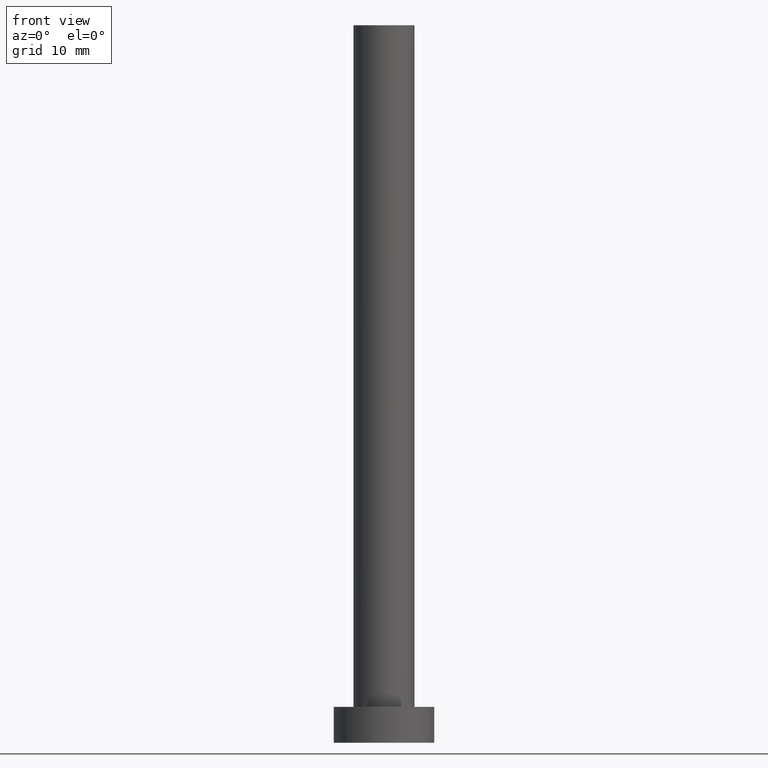
[diagram: clean part render]
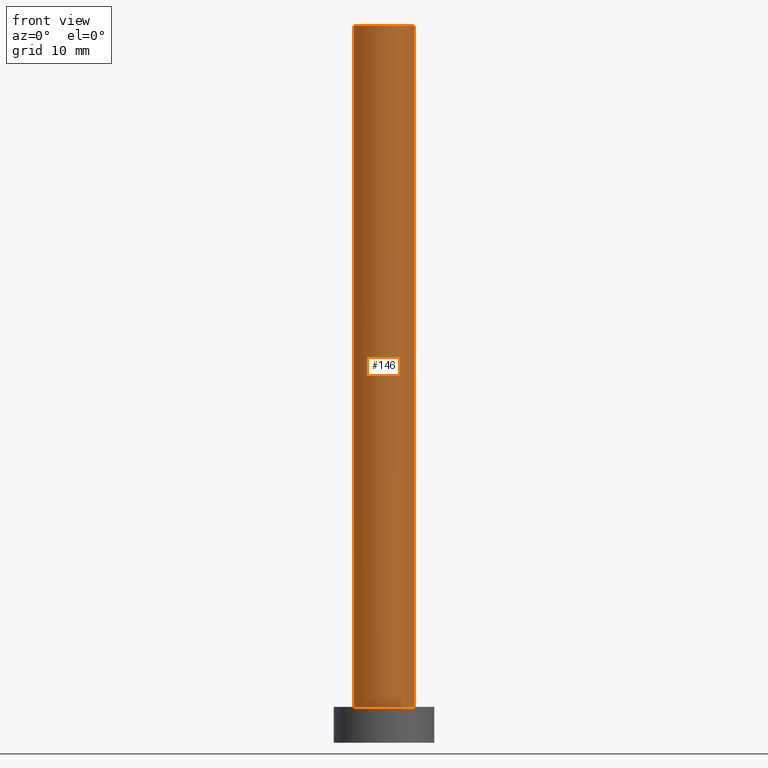
[diagram: same view with one face highlighted and labeled with its STEP entity id]
A machine part, front view. The second image highlights one B-rep face of the part: STEP entity #146.
In plain terms, the highlighted cylindrical surface (edge-blend (fillet) strip) has radius 4.25 mm, axis along (-0, -0, -1).
Its self-contained STEP definition (entity closure, byte-faithful):
#5 = CARTESIAN_POINT ( 'NONE',  ( -4.250000000000000000, 0.000000000000000000, 100.0000000000000000 ) ) ;
#8 = DIRECTION ( 'NONE',  ( 0.000000000000000000, 0.000000000000000000, 1.000000000000000000 ) ) ;
#10 = LINE ( 'NONE', #169, #60 ) ;
#17 = EDGE_CURVE ( 'NONE', #189, #52, #10, .T. ) ;
#27 = ORIENTED_EDGE ( 'NONE', *, *, #59, .T. ) ;
#31 = CARTESIAN_POINT ( 'NONE',  ( 0.000000000000000000, 0.000000000000000000, 100.0000000000000000 ) ) ;
#43 = CARTESIAN_POINT ( 'NONE',  ( 4.250000000000000000, 5.204748896376250699E-16, 100.0000000000000000 ) ) ;
#48 = CARTESIAN_POINT ( 'NONE',  ( 0.000000000000000000, 0.000000000000000000, 5.000000000000000000 ) ) ;
#50 = DIRECTION ( 'NONE',  ( 1.000000000000000000, 0.000000000000000000, 0.000000000000000000 ) ) ;
#52 = VERTEX_POINT ( 'NONE', #209 ) ;
#59 = EDGE_CURVE ( 'NONE', #101, #52, #224, .T. ) ;
#60 = VECTOR ( 'NONE', #223, 1000.000000000000000 ) ;
#75 = VECTOR ( 'NONE', #240, 1000.000000000000000 ) ;
#86 = DIRECTION ( 'NONE',  ( 1.000000000000000000, 0.000000000000000000, 0.000000000000000000 ) ) ;
#98 = CIRCLE ( 'NONE', #243, 4.250000000000000000 ) ;
#100 = EDGE_CURVE ( 'NONE', #125, #189, #98, .T. ) ;
#101 = VERTEX_POINT ( 'NONE', #113 ) ;
#105 = CARTESIAN_POINT ( 'NONE',  ( 0.000000000000000000, 0.000000000000000000, 100.0000000000000000 ) ) ;
#106 = ORIENTED_EDGE ( 'NONE', *, *, #194, .T. ) ;
#110 = ORIENTED_EDGE ( 'NONE', *, *, #100, .F. ) ;
#112 = AXIS2_PLACEMENT_3D ( 'NONE', #105, #124, #220 ) ;
#113 = CARTESIAN_POINT ( 'NONE',  ( -4.250000000000000000, 0.000000000000000000, 5.000000000000000000 ) ) ;
#124 = DIRECTION ( 'NONE',  ( -0.000000000000000000, -0.000000000000000000, -1.000000000000000000 ) ) ;
#125 = VERTEX_POINT ( 'NONE', #5 ) ;
#127 = ORIENTED_EDGE ( 'NONE', *, *, #17, .F. ) ;
#136 = DIRECTION ( 'NONE',  ( 0.000000000000000000, 0.000000000000000000, 1.000000000000000000 ) ) ;
#144 = LINE ( 'NONE', #202, #75 ) ;
#146 = ADVANCED_FACE ( 'NONE', ( #147 ), #181, .T. ) ;
#147 = FACE_OUTER_BOUND ( 'NONE', #205, .T. ) ;
#158 = AXIS2_PLACEMENT_3D ( 'NONE', #48, #136, #50 ) ;
#169 = CARTESIAN_POINT ( 'NONE',  ( 4.250000000000000000, 5.204748896376250699E-16, 100.0000000000000000 ) ) ;
#181 = CYLINDRICAL_SURFACE ( 'NONE', #112, 4.250000000000000000 ) ;
#189 = VERTEX_POINT ( 'NONE', #43 ) ;
#194 = EDGE_CURVE ( 'NONE', #125, #101, #144, .T. ) ;
#202 = CARTESIAN_POINT ( 'NONE',  ( -4.250000000000000000, 0.000000000000000000, 100.0000000000000000 ) ) ;
#205 = EDGE_LOOP ( 'NONE', ( #127, #110, #106, #27 ) ) ;
#209 = CARTESIAN_POINT ( 'NONE',  ( 4.250000000000000000, 5.204748896376250699E-16, 5.000000000000000000 ) ) ;
#220 = DIRECTION ( 'NONE',  ( -1.000000000000000000, 0.000000000000000000, 0.000000000000000000 ) ) ;
#223 = DIRECTION ( 'NONE',  ( -0.000000000000000000, -0.000000000000000000, -1.000000000000000000 ) ) ;
#224 = CIRCLE ( 'NONE', #158, 4.250000000000000000 ) ;
#240 = DIRECTION ( 'NONE',  ( -0.000000000000000000, -0.000000000000000000, -1.000000000000000000 ) ) ;
#243 = AXIS2_PLACEMENT_3D ( 'NONE', #31, #8, #86 ) ;